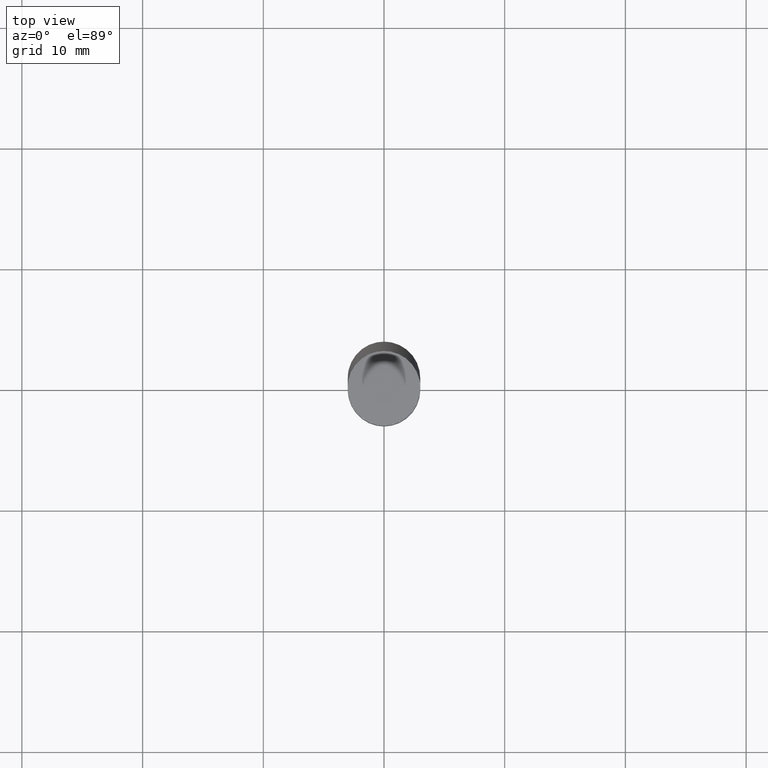
[diagram: clean part render]
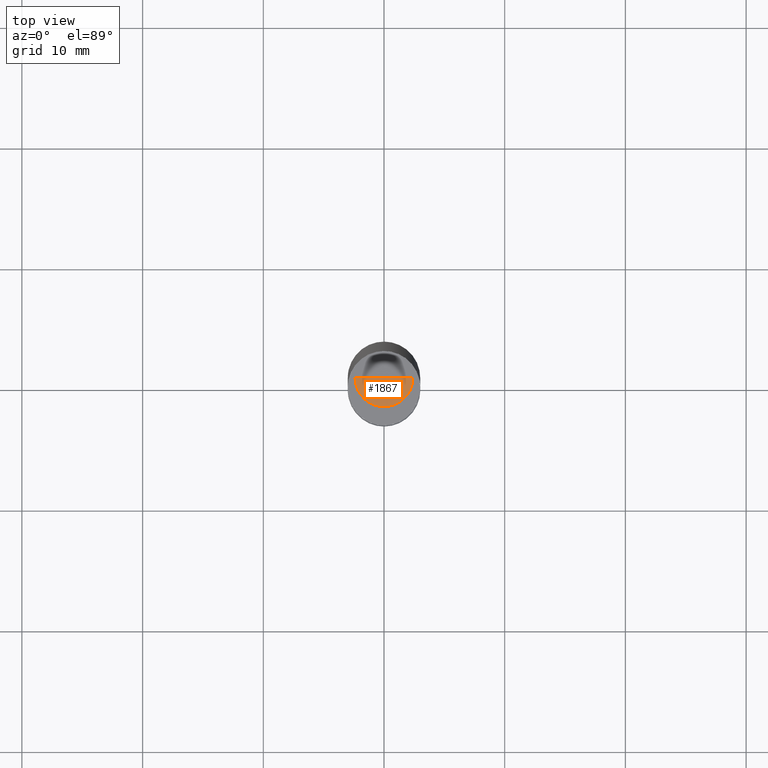
[diagram: same view with one face highlighted and labeled with its STEP entity id]
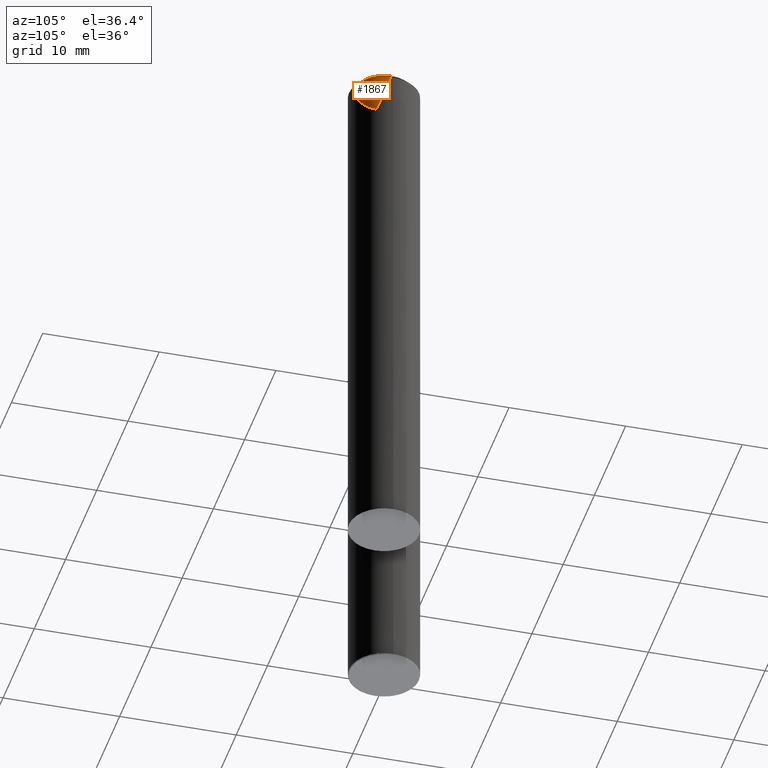
[diagram: same view with one face highlighted and labeled with its STEP entity id]
A machine part, top view. The second image highlights one B-rep face of the part: STEP entity #1867.
A second angle (auxiliary view) of the same face is appended — the face is thin or edge-on in the first view.
In plain terms, the highlighted face is a freeform B-spline surface patch.
Its self-contained STEP definition (entity closure, byte-faithful):
#1555=CARTESIAN_POINT('',(2.4,0.0,45.0));
#1559=CARTESIAN_POINT('',(-2.4,0.0,45.0));
#1560=CARTESIAN_POINT('',(0.0,0.0,45.0));
#1564=CARTESIAN_POINT('',(-2.4,-2.4,45.0));
#1565=CARTESIAN_POINT('',(0.0,-2.4,45.0));
#1566=CARTESIAN_POINT('',(2.4,-2.4,45.0));
#1852=(
BOUNDED_SURFACE()
B_SPLINE_SURFACE(1,2,(
(#1559,#1564,#1565,#1566,#1555),
(#1560,#1560,#1560,#1560,#1560)
), .UNSPECIFIED.,.F.,.F.,.F.)
B_SPLINE_SURFACE_WITH_KNOTS((2,2),(3,2,3),(
0.0,1.0),(
0.0,0.5,1.0), .UNSPECIFIED.)
GEOMETRIC_REPRESENTATION_ITEM()
RATIONAL_B_SPLINE_SURFACE(((1.0,0.707106781187,1.0,0.707106781187,1.0),
(1.0,0.707106781187,1.0,0.707106781187,1.0)
))
REPRESENTATION_ITEM('')
SURFACE()
);
#1853=(
BOUNDED_CURVE()
B_SPLINE_CURVE(1,(#1560,#1555),.UNSPECIFIED.,.F.,.F.)
B_SPLINE_CURVE_WITH_KNOTS((2,2),
(0.0,1.0),.UNSPECIFIED.)
CURVE()
GEOMETRIC_REPRESENTATION_ITEM()
RATIONAL_B_SPLINE_CURVE((1.0,1.0))
REPRESENTATION_ITEM('')
);
#1854=(
BOUNDED_CURVE()
B_SPLINE_CURVE(2,(#1555,#1566,#1565,#1564,#1559),.UNSPECIFIED.,.F.,.F.)
B_SPLINE_CURVE_WITH_KNOTS((3,2,3),
(0.0,0.5,1.0),.UNSPECIFIED.)
CURVE()
GEOMETRIC_REPRESENTATION_ITEM()
RATIONAL_B_SPLINE_CURVE((1.0,0.707106781187,1.0,0.707106781187,1.0))
REPRESENTATION_ITEM('')
);
#1855=(
BOUNDED_CURVE()
B_SPLINE_CURVE(1,(#1559,#1560),.UNSPECIFIED.,.F.,.F.)
B_SPLINE_CURVE_WITH_KNOTS((2,2),
(0.0,1.0),.UNSPECIFIED.)
CURVE()
GEOMETRIC_REPRESENTATION_ITEM()
RATIONAL_B_SPLINE_CURVE((1.0,1.0))
REPRESENTATION_ITEM('')
);
#1856=VERTEX_POINT('',#1555);
#1857=VERTEX_POINT('',#1559);
#1858=VERTEX_POINT('',#1560);
#1859=EDGE_CURVE('',#1858,#1856,#1853,.T.);
#1860=EDGE_CURVE('',#1856,#1857,#1854,.T.);
#1861=EDGE_CURVE('',#1857,#1858,#1855,.T.);
#1862=ORIENTED_EDGE('',*,*,#1859,.T.);
#1863=ORIENTED_EDGE('',*,*,#1860,.T.);
#1864=ORIENTED_EDGE('',*,*,#1861,.T.);
#1865=EDGE_LOOP('',(#1862,#1863,#1864));
#1866=FACE_OUTER_BOUND('',#1865,.T.);
#1867=ADVANCED_FACE('',(#1866),#1852,.T.);